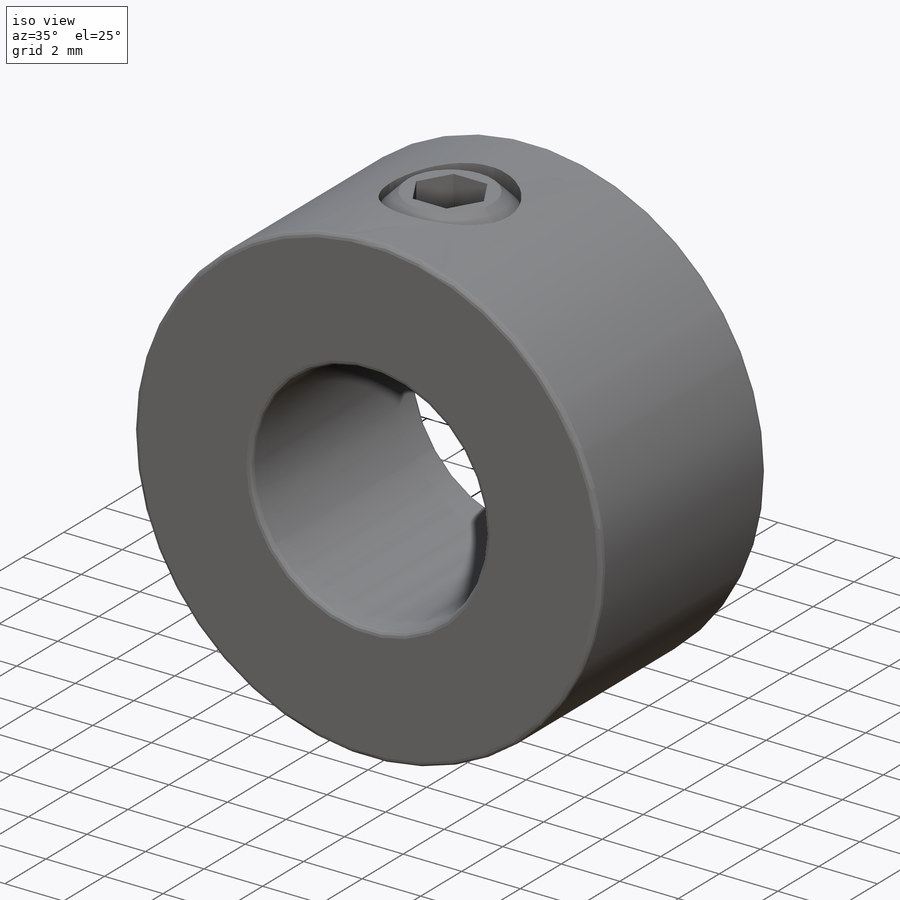
[diagram: iso view]
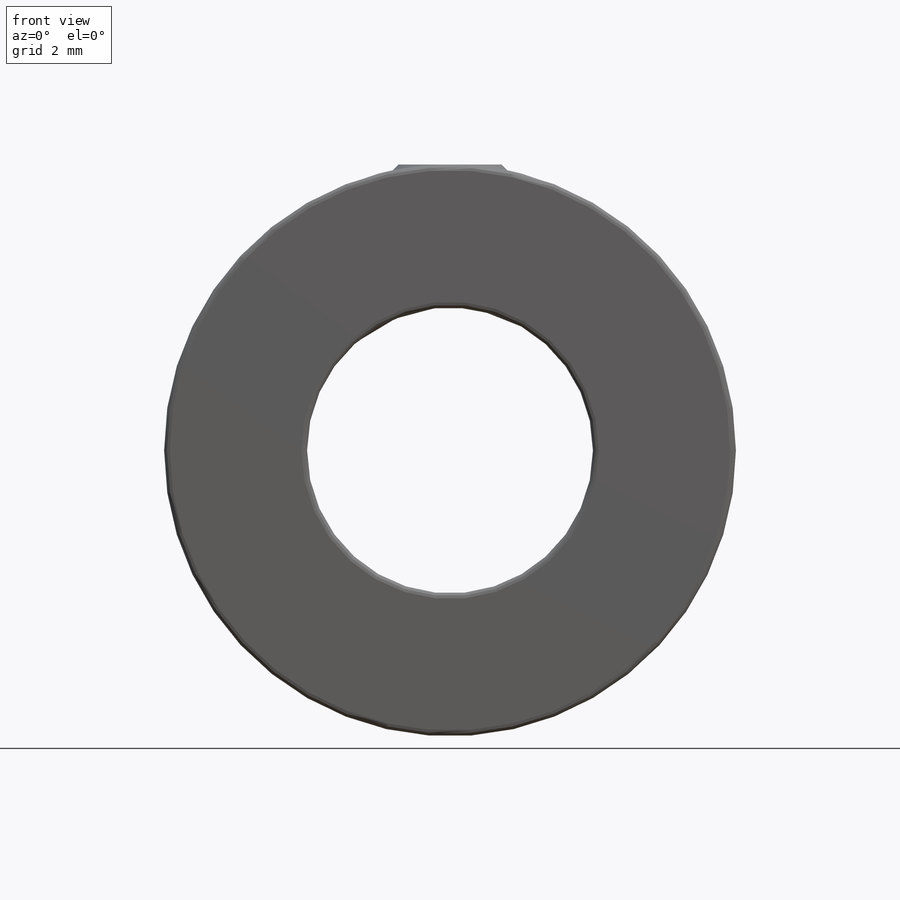
[diagram: front view]
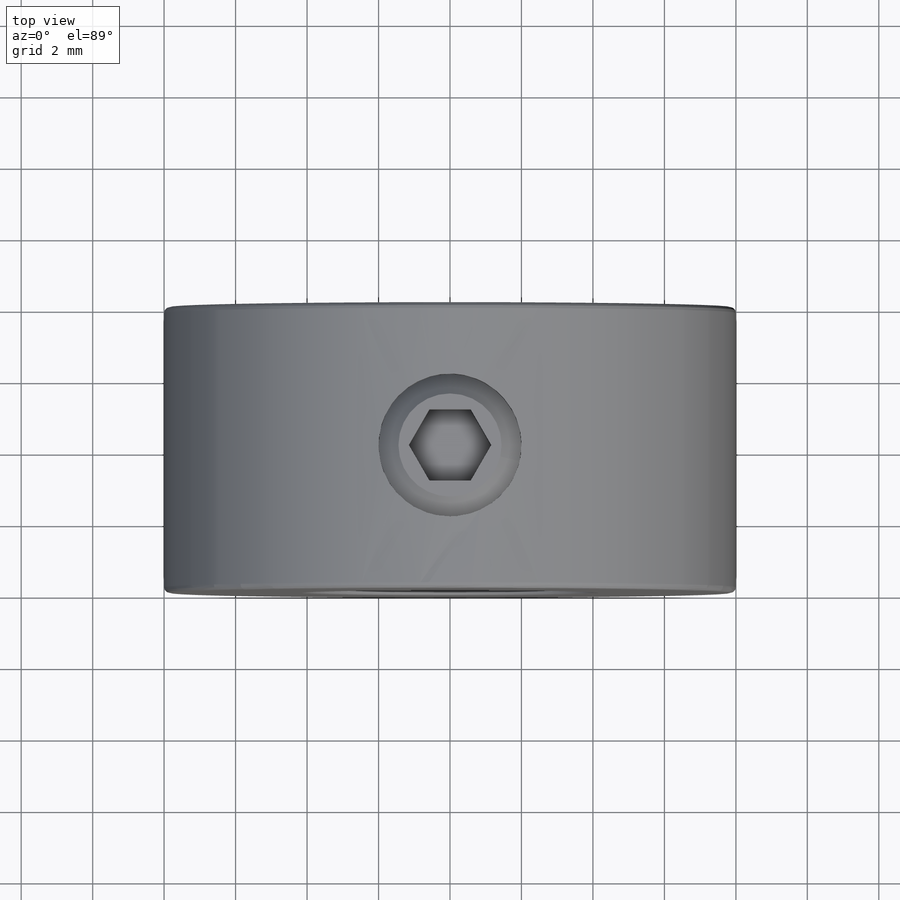
[diagram: top view]
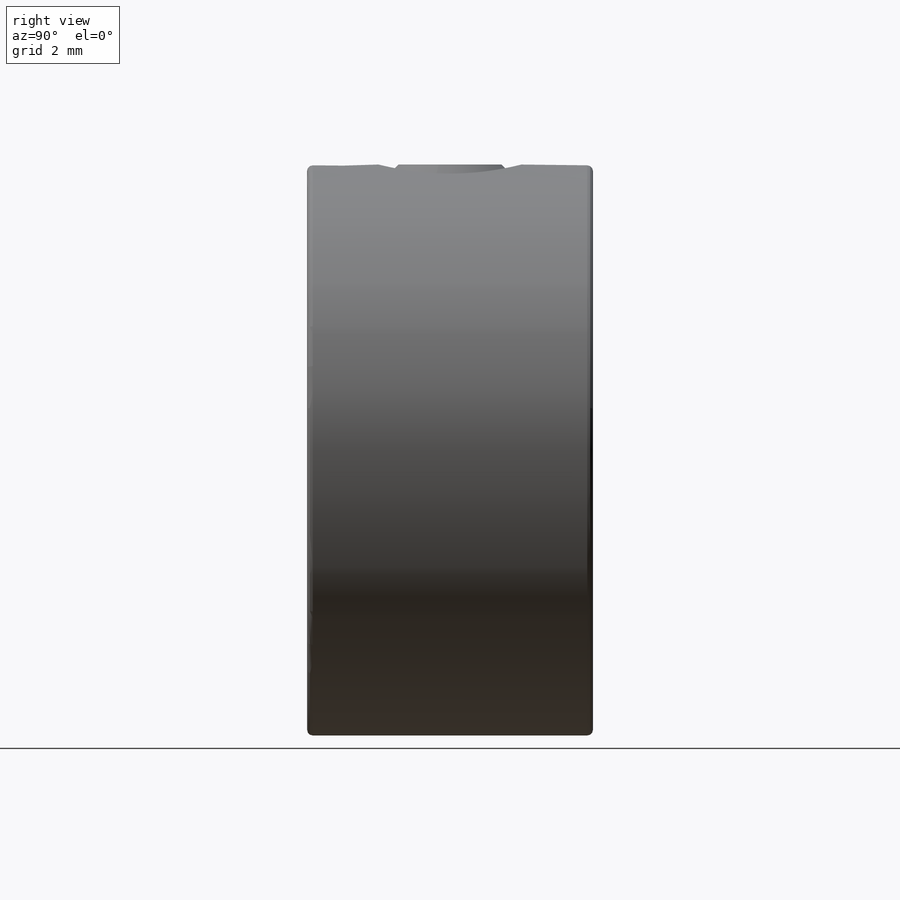
[diagram: right view]
SOLIDWORKS PART (.sldprt)
format: sldprt  version: not decoded by parser v0  size: 372,736 bytes
history: native  units: mm
features: sketch x4, plane x2, cut_extrude x2, material x1, extrude x1, revolve x1, fillet x1 (+14 scaffold rows collapsed)
feature tree (26):
  scaffold x14  (default folders/planes/origin — collapsed)
  material  "Material <not specified>"
  sketch  "Sketch1"  dims[Bore Dia=8.0mm OD=16.0mm]
  extrude  "Extrude1"  Depth=8mm Width=8mm
  plane  "Plane1"
  sketch  "Sketch2"  dims[Set Screw Dia=4.0mm]
  cut_extrude  "Cut-Extrude1"  [1 undecoded]
  plane  "Plane2"
  sketch  "Sketch3"  dims[c1.Screw Length=4.0mm c1.D2=~3.96875mm c1.D3=12.7mm c2.D2=~3.96875mm c2.D1=12.7mm c3.D2=~5.125823mm c4.D2=90.0deg c5.D2=~5.125823mm c6.D2=45.0deg c6.D3=12.7mm c6.D1=~2.216955mm c7.D3=4.0mm c7.D1=~2.886751mm c7.D4=~2.41448mm c8.D4=60.0deg c8.D5=~0.694481mm c8.D6=~0.763929mm c9.D5=~0.95459mm c10.D5=45.0deg c10.D6=~0.95459mm c11.D6=60.0deg c12.D6=~0.763929mm c12.D7=2.0mm c12.D8=0.5mm c12.D2=~1.355299mm c13.D2=45.0deg c13.D4=~2.358439mm c14.D4=45.0deg c14.D5=~2.358439mm c15.D5=60.0deg]
  revolve  "Revolve1"  Angle=360deg
  sketch  "Sketch4"  dims[Hex=2.0mm]
  cut_extrude  "Cut-Extrude2"  Depth=1.6mm
  fillet  "Fillet1"  Radius=0.16mm
decode coverage: 8 of 9 modeling features carry decoded parameters
note: ~ marks probable driven/reference dimensions
note: 1 parameter value undecoded
note: suppression state not decoded; provenance and decode notes live in map.json
